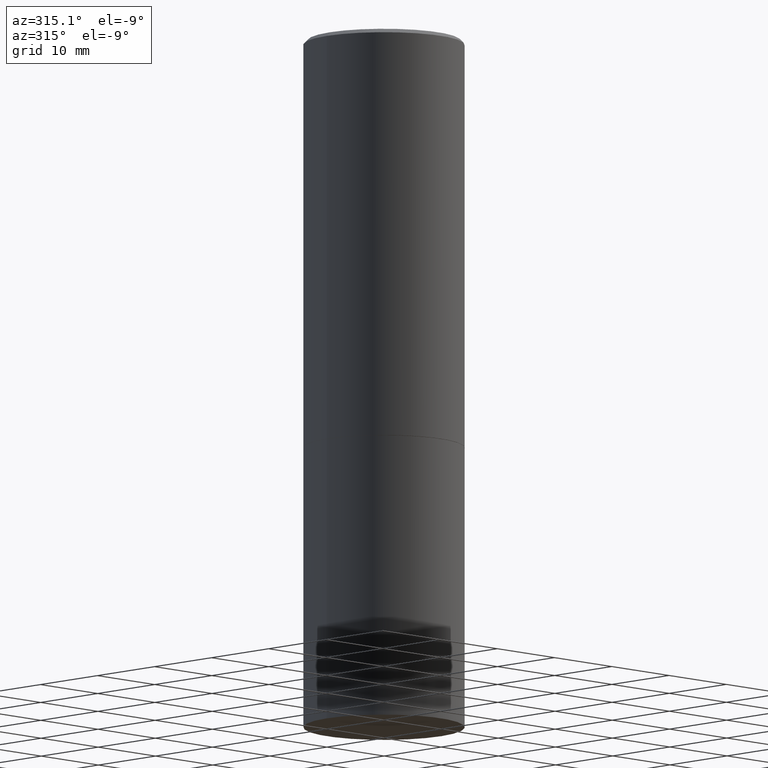
[diagram: clean part render]
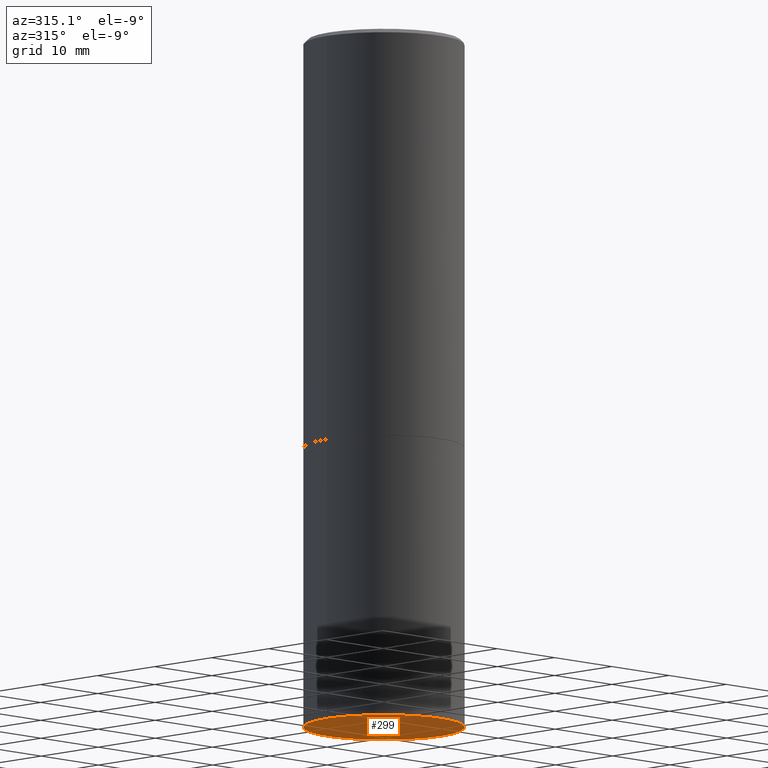
[diagram: same view with one face highlighted and labeled with its STEP entity id]
A machine part, auxiliary view. The second image highlights one B-rep face of the part: STEP entity #299.
In plain terms, the highlighted planar face has unit normal (0, -0, -1).
Its self-contained STEP definition (entity closure, byte-faithful):
#1 = VERTEX_POINT ( 'NONE', #161 ) ;
#3 = CARTESIAN_POINT ( 'NONE',  ( 2.749192406205166047E-15, 0.3936999999999882260, -3.385800000000001919 ) ) ;
#6 = DIRECTION ( 'NONE',  ( -2.445468806185136597E-29, 3.491481338843145583E-15, 1.000000000000000000 ) ) ;
#25 = EDGE_LOOP ( 'NONE', ( #277, #337 ) ) ;
#86 = VERTEX_POINT ( 'NONE', #354 ) ;
#89 = DIRECTION ( 'NONE',  ( 2.438088387897960049E-29, -3.491481338843145188E-15, -1.000000000000000000 ) ) ;
#135 = PLANE ( 'NONE',  #324 ) ;
#144 = DIRECTION ( 'NONE',  ( 1.000000000000000000, -6.982962677686267499E-15, 0.000000000000000000 ) ) ;
#161 = CARTESIAN_POINT ( 'NONE',  ( 0.3937000000000000499, -1.457064992326020852E-14, -3.385800000000000143 ) ) ;
#179 = CIRCLE ( 'NONE', #186, 0.3937000000000000499 ) ;
#186 = AXIS2_PLACEMENT_3D ( 'NONE', #220, #6, #346 ) ;
#220 = CARTESIAN_POINT ( 'NONE',  ( 8.279868283981636714E-29, -1.182145751705512373E-14, -3.385800000000000143 ) ) ;
#243 = EDGE_CURVE ( 'NONE', #86, #1, #179, .T. ) ;
#275 = EDGE_CURVE ( 'NONE', #1, #86, #284, .T. ) ;
#276 = AXIS2_PLACEMENT_3D ( 'NONE', #348, #318, #144 ) ;
#277 = ORIENTED_EDGE ( 'NONE', *, *, #275, .F. ) ;
#278 = FACE_OUTER_BOUND ( 'NONE', #25, .T. ) ;
#284 = CIRCLE ( 'NONE', #276, 0.3937000000000000499 ) ;
#299 = ADVANCED_FACE ( 'NONE', ( #278 ), #135, .T. ) ;
#310 = DIRECTION ( 'NONE',  ( -1.000000000000000000, 6.982962677686265922E-15, -4.876176775795935793E-29 ) ) ;
#318 = DIRECTION ( 'NONE',  ( -2.445468806185136597E-29, 3.491481338843145583E-15, 1.000000000000000000 ) ) ;
#324 = AXIS2_PLACEMENT_3D ( 'NONE', #3, #89, #310 ) ;
#337 = ORIENTED_EDGE ( 'NONE', *, *, #243, .F. ) ;
#346 = DIRECTION ( 'NONE',  ( 1.000000000000000000, -6.982962677686267499E-15, 0.000000000000000000 ) ) ;
#348 = CARTESIAN_POINT ( 'NONE',  ( 8.279868283981636714E-29, -1.182145751705512373E-14, -3.385800000000000143 ) ) ;
#354 = CARTESIAN_POINT ( 'NONE',  ( -0.3937000000000000499, -6.618420123904681571E-15, -3.385800000000000143 ) ) ;